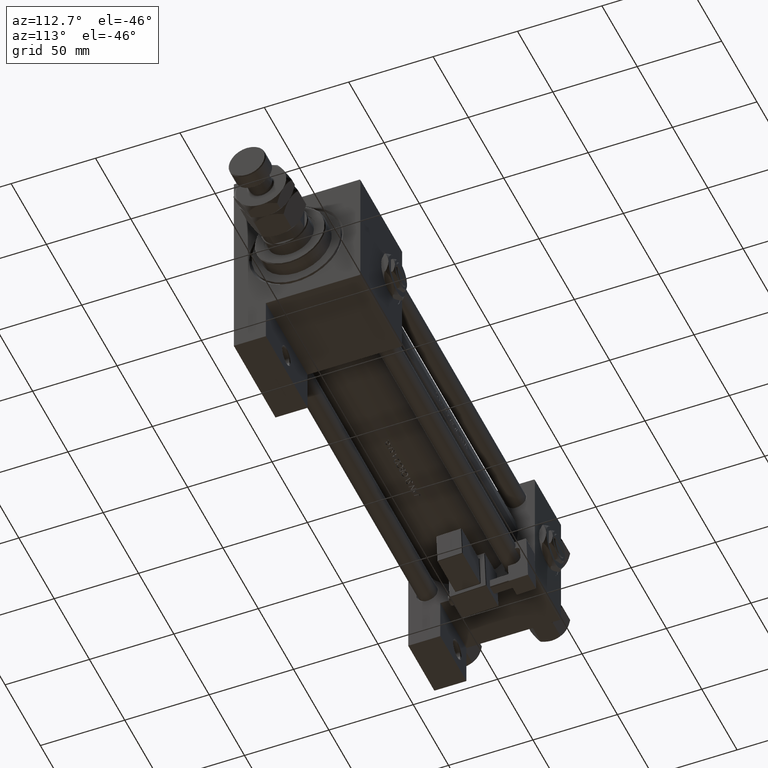
[diagram: clean part render]
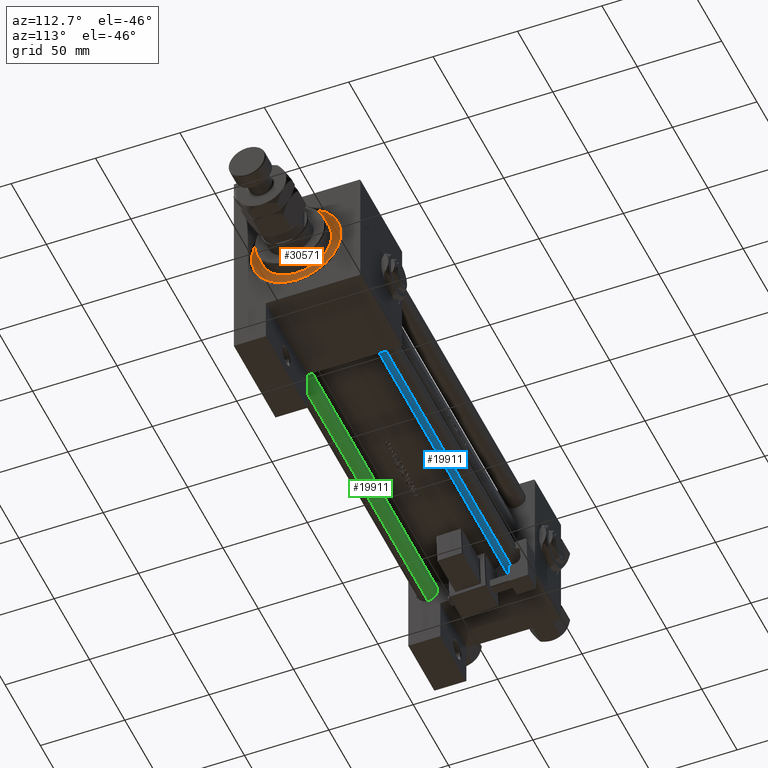
[diagram: same view with three faces highlighted in distinct colors, each labeled with its STEP entity id]
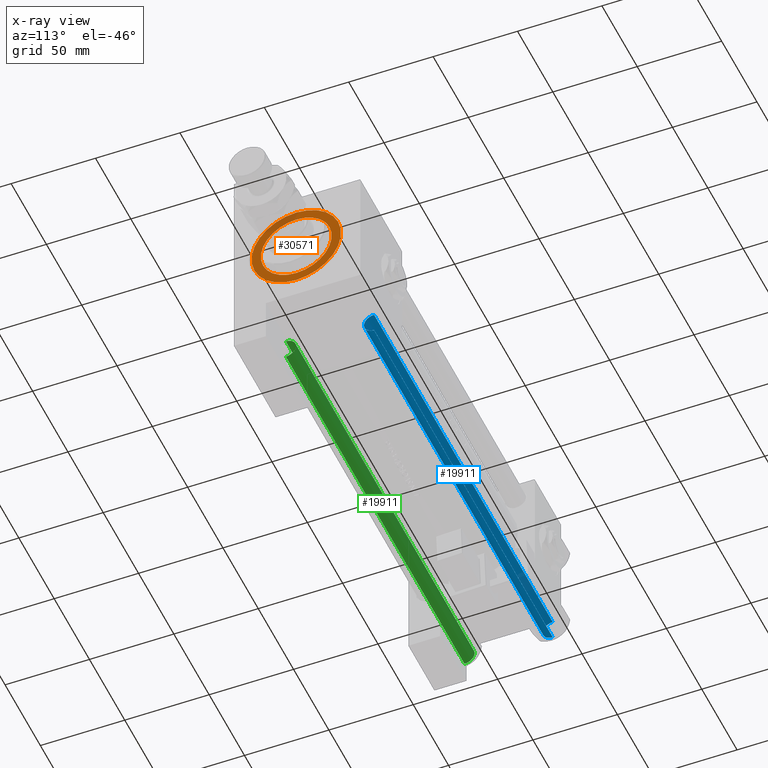
[diagram: x-ray of the same camera — body ghosted, the three highlighted faces saturated]
A machine part, auxiliary view with three faces highlighted in distinct colors.
The next image is the same camera in x-ray (body ghosted, the three faces saturated) — at least one of them is partly hidden behind the body in this view.
Their STEP definitions:

[orange] entity #30571 — the highlighted planar face has unit normal (1, 0, 0).
#654 = DIRECTION ( 'NONE',  ( 0.000000000000000000, 0.000000000000000000, 1.000000000000000000 ) ) ;
#4224 = AXIS2_PLACEMENT_3D ( 'NONE', #21212, #654, #42088 ) ;
#4263 = AXIS2_PLACEMENT_3D ( 'NONE', #27949, #8178, #16179 ) ;
#4862 = CIRCLE ( 'NONE', #29499, 21.00000000000000000 ) ;
#5378 = DIRECTION ( 'NONE',  ( 0.000000000000000000, 0.000000000000000000, 1.000000000000000000 ) ) ;
#6335 = VERTEX_POINT ( 'NONE', #9715 ) ;
#8178 = DIRECTION ( 'NONE',  ( 0.000000000000000000, 0.000000000000000000, 1.000000000000000000 ) ) ;
#9715 = CARTESIAN_POINT ( 'NONE',  ( -26.50000000000000355, 0.000000000000000000, 28.69999999999999929 ) ) ;
#10760 = DIRECTION ( 'NONE',  ( 0.000000000000000000, 0.000000000000000000, 1.000000000000000000 ) ) ;
#15304 = VERTEX_POINT ( 'NONE', #15920 ) ;
#15920 = CARTESIAN_POINT ( 'NONE',  ( -21.00000000000000000, 0.000000000000000000, 28.69999999999999929 ) ) ;
#16179 = DIRECTION ( 'NONE',  ( 1.000000000000000000, 0.000000000000000000, 0.000000000000000000 ) ) ;
#20621 = CARTESIAN_POINT ( 'NONE',  ( 21.00000000000000000, 2.571758278209441661E-15, 28.69999999999999929 ) ) ;
#21212 = CARTESIAN_POINT ( 'NONE',  ( 0.000000000000000000, 0.000000000000000000, 28.69999999999999929 ) ) ;
#21779 = EDGE_LOOP ( 'NONE', ( #30157, #31481 ) ) ;
#23572 = DIRECTION ( 'NONE',  ( 1.000000000000000000, 0.000000000000000000, 0.000000000000000000 ) ) ;
#25195 = DIRECTION ( 'NONE',  ( 0.000000000000000000, 0.000000000000000000, 1.000000000000000000 ) ) ;
#25323 = EDGE_CURVE ( 'NONE', #15304, #38451, #4862, .T. ) ;
#25679 = FACE_OUTER_BOUND ( 'NONE', #42733, .T. ) ;
#26226 = AXIS2_PLACEMENT_3D ( 'NONE', #34237, #5378, #42530 ) ;
#27050 = CIRCLE ( 'NONE', #45892, 26.50000000000000355 ) ;
#27297 = CIRCLE ( 'NONE', #4263, 26.50000000000000355 ) ;
#27949 = CARTESIAN_POINT ( 'NONE',  ( 0.000000000000000000, 0.000000000000000000, 28.69999999999999929 ) ) ;
#29008 = ORIENTED_EDGE ( 'NONE', *, *, #29367, .T. ) ;
#29367 = EDGE_CURVE ( 'NONE', #6335, #34004, #27050, .T. ) ;
#29499 = AXIS2_PLACEMENT_3D ( 'NONE', #32714, #25195, #49314 ) ;
#30157 = ORIENTED_EDGE ( 'NONE', *, *, #25323, .F. ) ;
#30571 = ADVANCED_FACE ( 'NONE', ( #38258, #25679 ), #42270, .T. ) ;
#31481 = ORIENTED_EDGE ( 'NONE', *, *, #47101, .F. ) ;
#31794 = ORIENTED_EDGE ( 'NONE', *, *, #48017, .T. ) ;
#32714 = CARTESIAN_POINT ( 'NONE',  ( 0.000000000000000000, 0.000000000000000000, 28.69999999999999929 ) ) ;
#34004 = VERTEX_POINT ( 'NONE', #35850 ) ;
#34237 = CARTESIAN_POINT ( 'NONE',  ( 0.000000000000000000, 0.000000000000000000, 28.69999999999999929 ) ) ;
#35850 = CARTESIAN_POINT ( 'NONE',  ( 26.50000000000000355, 3.245314017740486554E-15, 28.69999999999999929 ) ) ;
#38258 = FACE_BOUND ( 'NONE', #21779, .T. ) ;
#38451 = VERTEX_POINT ( 'NONE', #20621 ) ;
#42088 = DIRECTION ( 'NONE',  ( 1.000000000000000000, 0.000000000000000000, 0.000000000000000000 ) ) ;
#42270 = PLANE ( 'NONE',  #26226 ) ;
#42530 = DIRECTION ( 'NONE',  ( 1.000000000000000000, 0.000000000000000000, -0.000000000000000000 ) ) ;
#42733 = EDGE_LOOP ( 'NONE', ( #29008, #31794 ) ) ;
#45231 = CIRCLE ( 'NONE', #4224, 21.00000000000000000 ) ;
#45892 = AXIS2_PLACEMENT_3D ( 'NONE', #47419, #10760, #23572 ) ;
#47101 = EDGE_CURVE ( 'NONE', #38451, #15304, #45231, .T. ) ;
#47419 = CARTESIAN_POINT ( 'NONE',  ( 0.000000000000000000, 0.000000000000000000, 28.69999999999999929 ) ) ;
#48017 = EDGE_CURVE ( 'NONE', #34004, #6335, #27297, .T. ) ;
#49314 = DIRECTION ( 'NONE',  ( 1.000000000000000000, 0.000000000000000000, 0.000000000000000000 ) ) ;

[blue] entity #19911 — the highlighted cylindrical surface (edge-blend (fillet) strip) has radius 6 mm, axis along (1, -0, -0).
#530 = CARTESIAN_POINT ( 'NONE',  ( 6.000000000000000888, 7.347880794884120722E-16, 254.0000000000000000 ) ) ;
#2587 = CIRCLE ( 'NONE', #15371, 6.000000000000000888 ) ;
#3300 = DIRECTION ( 'NONE',  ( -0.000000000000000000, -0.000000000000000000, -1.000000000000000000 ) ) ;
#7340 = FACE_OUTER_BOUND ( 'NONE', #10982, .T. ) ;
#9806 = VERTEX_POINT ( 'NONE', #20826 ) ;
#10982 = EDGE_LOOP ( 'NONE', ( #18109, #26572, #20399, #18269 ) ) ;
#11336 = LINE ( 'NONE', #530, #35927 ) ;
#11402 = CARTESIAN_POINT ( 'NONE',  ( 0.000000000000000000, 0.000000000000000000, 253.5000000000000568 ) ) ;
#12149 = DIRECTION ( 'NONE',  ( -1.000000000000000000, 0.000000000000000000, 0.000000000000000000 ) ) ;
#15289 = CARTESIAN_POINT ( 'NONE',  ( -6.000000000000000888, 0.000000000000000000, 253.5000000000000568 ) ) ;
#15371 = AXIS2_PLACEMENT_3D ( 'NONE', #11402, #31702, #31177 ) ;
#15896 = CYLINDRICAL_SURFACE ( 'NONE', #37060, 6.000000000000000888 ) ;
#15905 = VERTEX_POINT ( 'NONE', #48967 ) ;
#16319 = DIRECTION ( 'NONE',  ( 1.000000000000000000, 0.000000000000000000, 0.000000000000000000 ) ) ;
#18109 = ORIENTED_EDGE ( 'NONE', *, *, #41134, .F. ) ;
#18269 = ORIENTED_EDGE ( 'NONE', *, *, #48807, .T. ) ;
#19911 = ADVANCED_FACE ( 'NONE', ( #7340 ), #15896, .T. ) ;
#20399 = ORIENTED_EDGE ( 'NONE', *, *, #47973, .T. ) ;
#20826 = CARTESIAN_POINT ( 'NONE',  ( -6.000000000000000888, 0.000000000000000000, 0.5000000000000004441 ) ) ;
#23113 = CIRCLE ( 'NONE', #35920, 6.000000000000000888 ) ;
#23481 = CARTESIAN_POINT ( 'NONE',  ( 6.000000000000000888, 7.347880794884120722E-16, 0.5000000000000004441 ) ) ;
#25670 = VERTEX_POINT ( 'NONE', #15289 ) ;
#26572 = ORIENTED_EDGE ( 'NONE', *, *, #47902, .T. ) ;
#31177 = DIRECTION ( 'NONE',  ( 1.000000000000000000, 0.000000000000000000, 0.000000000000000000 ) ) ;
#31394 = CARTESIAN_POINT ( 'NONE',  ( 0.000000000000000000, 0.000000000000000000, 254.0000000000000000 ) ) ;
#31586 = VECTOR ( 'NONE', #44823, 1000.000000000000000 ) ;
#31702 = DIRECTION ( 'NONE',  ( 0.000000000000000000, 0.000000000000000000, -1.000000000000000000 ) ) ;
#31920 = VERTEX_POINT ( 'NONE', #23481 ) ;
#32452 = DIRECTION ( 'NONE',  ( -0.000000000000000000, -0.000000000000000000, -1.000000000000000000 ) ) ;
#35920 = AXIS2_PLACEMENT_3D ( 'NONE', #36397, #52732, #16319 ) ;
#35927 = VECTOR ( 'NONE', #3300, 1000.000000000000000 ) ;
#36397 = CARTESIAN_POINT ( 'NONE',  ( 0.000000000000000000, 0.000000000000000000, 0.5000000000000004441 ) ) ;
#36511 = LINE ( 'NONE', #44561, #31586 ) ;
#37060 = AXIS2_PLACEMENT_3D ( 'NONE', #31394, #32452, #12149 ) ;
#41134 = EDGE_CURVE ( 'NONE', #15905, #31920, #11336, .T. ) ;
#44561 = CARTESIAN_POINT ( 'NONE',  ( -6.000000000000000888, 0.000000000000000000, 254.0000000000000000 ) ) ;
#44823 = DIRECTION ( 'NONE',  ( -0.000000000000000000, -0.000000000000000000, -1.000000000000000000 ) ) ;
#47902 = EDGE_CURVE ( 'NONE', #15905, #25670, #2587, .T. ) ;
#47973 = EDGE_CURVE ( 'NONE', #25670, #9806, #36511, .T. ) ;
#48807 = EDGE_CURVE ( 'NONE', #9806, #31920, #23113, .T. ) ;
#48967 = CARTESIAN_POINT ( 'NONE',  ( 6.000000000000000888, 7.347880794884120722E-16, 253.5000000000000568 ) ) ;
#52732 = DIRECTION ( 'NONE',  ( -0.000000000000000000, -0.000000000000000000, 1.000000000000000000 ) ) ;

[green] entity #19911 — the highlighted cylindrical surface (edge-blend (fillet) strip) has radius 6 mm, axis along (-1, 0, 0).
#530 = CARTESIAN_POINT ( 'NONE',  ( 6.000000000000000888, 7.347880794884120722E-16, 254.0000000000000000 ) ) ;
#2587 = CIRCLE ( 'NONE', #15371, 6.000000000000000888 ) ;
#3300 = DIRECTION ( 'NONE',  ( -0.000000000000000000, -0.000000000000000000, -1.000000000000000000 ) ) ;
#7340 = FACE_OUTER_BOUND ( 'NONE', #10982, .T. ) ;
#9806 = VERTEX_POINT ( 'NONE', #20826 ) ;
#10982 = EDGE_LOOP ( 'NONE', ( #18109, #26572, #20399, #18269 ) ) ;
#11336 = LINE ( 'NONE', #530, #35927 ) ;
#11402 = CARTESIAN_POINT ( 'NONE',  ( 0.000000000000000000, 0.000000000000000000, 253.5000000000000568 ) ) ;
#12149 = DIRECTION ( 'NONE',  ( -1.000000000000000000, 0.000000000000000000, 0.000000000000000000 ) ) ;
#15289 = CARTESIAN_POINT ( 'NONE',  ( -6.000000000000000888, 0.000000000000000000, 253.5000000000000568 ) ) ;
#15371 = AXIS2_PLACEMENT_3D ( 'NONE', #11402, #31702, #31177 ) ;
#15896 = CYLINDRICAL_SURFACE ( 'NONE', #37060, 6.000000000000000888 ) ;
#15905 = VERTEX_POINT ( 'NONE', #48967 ) ;
#16319 = DIRECTION ( 'NONE',  ( 1.000000000000000000, 0.000000000000000000, 0.000000000000000000 ) ) ;
#18109 = ORIENTED_EDGE ( 'NONE', *, *, #41134, .F. ) ;
#18269 = ORIENTED_EDGE ( 'NONE', *, *, #48807, .T. ) ;
#19911 = ADVANCED_FACE ( 'NONE', ( #7340 ), #15896, .T. ) ;
#20399 = ORIENTED_EDGE ( 'NONE', *, *, #47973, .T. ) ;
#20826 = CARTESIAN_POINT ( 'NONE',  ( -6.000000000000000888, 0.000000000000000000, 0.5000000000000004441 ) ) ;
#23113 = CIRCLE ( 'NONE', #35920, 6.000000000000000888 ) ;
#23481 = CARTESIAN_POINT ( 'NONE',  ( 6.000000000000000888, 7.347880794884120722E-16, 0.5000000000000004441 ) ) ;
#25670 = VERTEX_POINT ( 'NONE', #15289 ) ;
#26572 = ORIENTED_EDGE ( 'NONE', *, *, #47902, .T. ) ;
#31177 = DIRECTION ( 'NONE',  ( 1.000000000000000000, 0.000000000000000000, 0.000000000000000000 ) ) ;
#31394 = CARTESIAN_POINT ( 'NONE',  ( 0.000000000000000000, 0.000000000000000000, 254.0000000000000000 ) ) ;
#31586 = VECTOR ( 'NONE', #44823, 1000.000000000000000 ) ;
#31702 = DIRECTION ( 'NONE',  ( 0.000000000000000000, 0.000000000000000000, -1.000000000000000000 ) ) ;
#31920 = VERTEX_POINT ( 'NONE', #23481 ) ;
#32452 = DIRECTION ( 'NONE',  ( -0.000000000000000000, -0.000000000000000000, -1.000000000000000000 ) ) ;
#35920 = AXIS2_PLACEMENT_3D ( 'NONE', #36397, #52732, #16319 ) ;
#35927 = VECTOR ( 'NONE', #3300, 1000.000000000000000 ) ;
#36397 = CARTESIAN_POINT ( 'NONE',  ( 0.000000000000000000, 0.000000000000000000, 0.5000000000000004441 ) ) ;
#36511 = LINE ( 'NONE', #44561, #31586 ) ;
#37060 = AXIS2_PLACEMENT_3D ( 'NONE', #31394, #32452, #12149 ) ;
#41134 = EDGE_CURVE ( 'NONE', #15905, #31920, #11336, .T. ) ;
#44561 = CARTESIAN_POINT ( 'NONE',  ( -6.000000000000000888, 0.000000000000000000, 254.0000000000000000 ) ) ;
#44823 = DIRECTION ( 'NONE',  ( -0.000000000000000000, -0.000000000000000000, -1.000000000000000000 ) ) ;
#47902 = EDGE_CURVE ( 'NONE', #15905, #25670, #2587, .T. ) ;
#47973 = EDGE_CURVE ( 'NONE', #25670, #9806, #36511, .T. ) ;
#48807 = EDGE_CURVE ( 'NONE', #9806, #31920, #23113, .T. ) ;
#48967 = CARTESIAN_POINT ( 'NONE',  ( 6.000000000000000888, 7.347880794884120722E-16, 253.5000000000000568 ) ) ;
#52732 = DIRECTION ( 'NONE',  ( -0.000000000000000000, -0.000000000000000000, 1.000000000000000000 ) ) ;